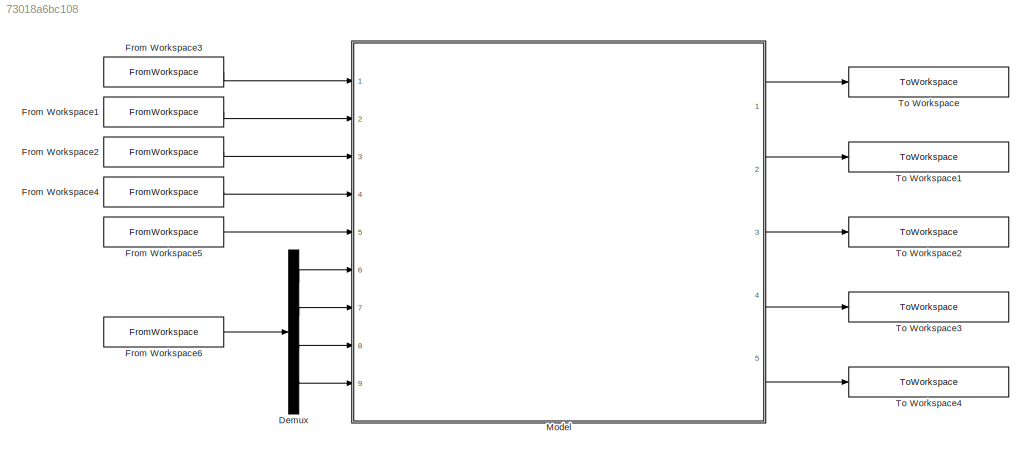
MODEL slx_73018a6bc108
KIND model
CONFIG AbsTol = auto
CONFIG FixedStep = auto
CONFIG MaxStep = auto
CONFIG MinStep = auto
CONFIG RelTol = 1e-3
CONFIG SampleTimeConstraint = Unconstrained
CONFIG Solver = VariableStepAuto
CONFIG SolverMode = Auto
CONFIG SolverName = VariableStepAuto
CONFIG StartTime = 0.0
CONFIG StopTime = sim_time
BLOCK [Demux] Demux
  DisplayOption = bar
  Ports = [1, 4]
BLOCK [FromWorkspace] From Workspace1
  VariableName = BTC_Input_CellSOC
  ZeroCross = on
BLOCK [FromWorkspace] From Workspace2
  VariableName = BTC_Input_ChgStatus
  ZeroCross = on
BLOCK [FromWorkspace] From Workspace3
  VariableName = BTC_Input_CellT
  ZeroCross = on
BLOCK [FromWorkspace] From Workspace4
  VariableName = BTC_Input_AmbTmep
  ZeroCross = on
BLOCK [FromWorkspace] From Workspace5
  VariableName = BTC_Input_DisChgStatus
  ZeroCross = on
BLOCK [FromWorkspace] From Workspace6
  VariableName = BTC_Input_Faults
  ZeroCross = on
BLOCK [ModelReference] Model
  CopyOfModelName = BTC.slx
  ModelNameDialog = BTC.slx
  ModelReferenceVersion = 1.32
  Ports = [9, 5]
  Variant = off
BLOCK [ToWorkspace] To Workspace
  FixptAsFi = on
  MaxDataPoints = inf
  Ports = [1]
  SampleTime = -1
  Save2DSignal = 3-D array (concatenate along third dimension)
  SaveFormat = Timeseries
  VariableName = btc_coolant_flow_percent
BLOCK [ToWorkspace] To Workspace1
  FixptAsFi = on
  MaxDataPoints = inf
  Ports = [1]
  SampleTime = -1
  Save2DSignal = 3-D array (concatenate along third dimension)
  SaveFormat = Timeseries
  VariableName = btc_batt_target_temp
BLOCK [ToWorkspace] To Workspace2
  FixptAsFi = on
  MaxDataPoints = inf
  Ports = [1]
  SampleTime = -1
  Save2DSignal = 3-D array (concatenate along third dimension)
  SaveFormat = Timeseries
  VariableName = btc_batt_actual_temp
BLOCK [ToWorkspace] To Workspace3
  FixptAsFi = on
  MaxDataPoints = inf
  Ports = [1]
  SampleTime = -1
  Save2DSignal = 3-D array (concatenate along third dimension)
  SaveFormat = Timeseries
  VariableName = btc_coolant_request_status
BLOCK [ToWorkspace] To Workspace4
  FixptAsFi = on
  MaxDataPoints = inf
  Ports = [1]
  SampleTime = -1
  Save2DSignal = 3-D array (concatenate along third dimension)
  SaveFormat = Timeseries
  VariableName = btc_batt_thermal_condition
LINE Demux:1 -> Model:6
LINE Demux:2 -> Model:7
LINE Demux:3 -> Model:8
LINE Demux:4 -> Model:9
LINE From Workspace1:1 -> Model:2
LINE From Workspace2:1 -> Model:3
LINE From Workspace3:1 -> Model:1
LINE From Workspace4:1 -> Model:4
LINE From Workspace5:1 -> Model:5
LINE From Workspace6:1 -> Demux:1
LINE Model:1 -> To Workspace:1
LINE Model:2 -> To Workspace1:1
LINE Model:3 -> To Workspace2:1
LINE Model:4 -> To Workspace3:1
LINE Model:5 -> To Workspace4:1
